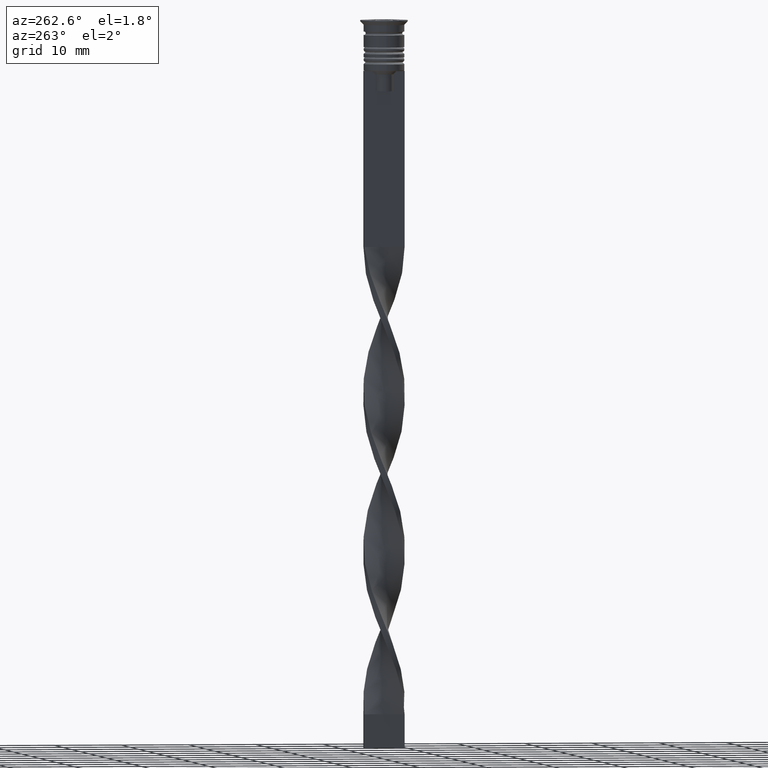
[diagram: clean part render]
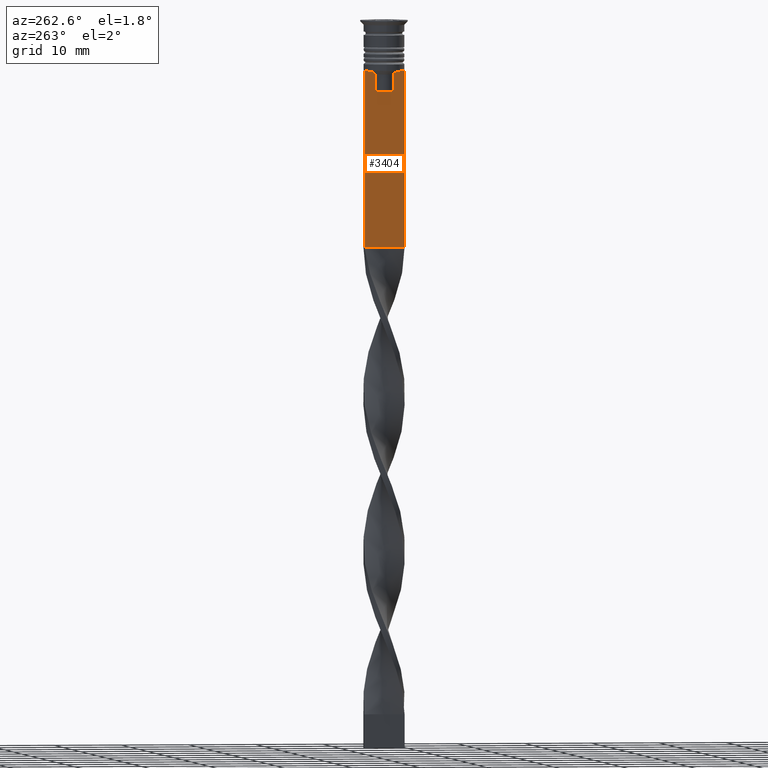
[diagram: same view with one face highlighted and labeled with its STEP entity id]
A machine part, auxiliary view. The second image highlights one B-rep face of the part: STEP entity #3404.
In plain terms, the highlighted planar face has unit normal (-1, 0, 0).
Its self-contained STEP definition (entity closure, byte-faithful):
#36 = DIRECTION ( 'NONE',  ( 0.000000000000000000, 0.000000000000000000, -1.000000000000000000 ) ) ;
#44 = EDGE_CURVE ( 'NONE', #3169, #1009, #161, .T. ) ;
#76 = CARTESIAN_POINT ( 'NONE',  ( -0.5000000000000001110, -1.307669683062199217, 0.000000000000000000 ) ) ;
#161 = LINE ( 'NONE', #435, #290 ) ;
#193 = EDGE_CURVE ( 'NONE', #2103, #3303, #812, .T. ) ;
#209 = VERTEX_POINT ( 'NONE', #2985 ) ;
#214 = VERTEX_POINT ( 'NONE', #2724 ) ;
#290 = VECTOR ( 'NONE', #730, 1000.000000000000000 ) ;
#296 = CARTESIAN_POINT ( 'NONE',  ( -0.5000000000000001110, -3.000000000000000000, -1.417237469701779329 ) ) ;
#327 = EDGE_CURVE ( 'NONE', #209, #2155, #1258, .T. ) ;
#390 = EDGE_LOOP ( 'NONE', ( #3227, #2814, #1753, #3126, #1090, #1323, #1915, #1368, #2499, #3310, #3315, #3326 ) ) ;
#435 = CARTESIAN_POINT ( 'NONE',  ( -0.5000000000000001110, 1.307669683062199217, 0.000000000000000000 ) ) ;
#437 = CARTESIAN_POINT ( 'NONE',  ( -0.5000000000000001110, -3.000000000000000000, -1.417237469701779329 ) ) ;
#520 = CARTESIAN_POINT ( 'NONE',  ( -0.5000000000000001110, -1.833030277982335532, -7.500000000000000000 ) ) ;
#522 = VERTEX_POINT ( 'NONE', #2861 ) ;
#586 = CARTESIAN_POINT ( 'NONE',  ( -0.5000000000000001110, -1.307669683062199217, -10.49999999999999822 ) ) ;
#597 = DIRECTION ( 'NONE',  ( 0.000000000000000000, -1.000000000000000000, 0.000000000000000000 ) ) ;
#612 = EDGE_CURVE ( 'NONE', #1447, #964, #2995, .T. ) ;
#730 = DIRECTION ( 'NONE',  ( 0.000000000000000000, 0.000000000000000000, -1.000000000000000000 ) ) ;
#734 = FACE_OUTER_BOUND ( 'NONE', #390, .T. ) ;
#755 = LINE ( 'NONE', #2920, #2965 ) ;
#776 = DIRECTION ( 'NONE',  ( 0.000000000000000000, -1.000000000000000000, 0.000000000000000000 ) ) ;
#792 = CARTESIAN_POINT ( 'NONE',  ( -0.5000000000000001110, 1.307669683062199217, -8.000000000000000000 ) ) ;
#812 = LINE ( 'NONE', #828, #3117 ) ;
#820 = EDGE_CURVE ( 'NONE', #2103, #214, #2748, .T. ) ;
#828 = CARTESIAN_POINT ( 'NONE',  ( -0.5000000000000001110, 3.000000000000000000, -1.417237469701779329 ) ) ;
#832 = CARTESIAN_POINT ( 'NONE',  ( -0.5000000000000001110, -1.307669683062199217, -8.000000000000000000 ) ) ;
#875 = VERTEX_POINT ( 'NONE', #832 ) ;
#946 = CARTESIAN_POINT ( 'NONE',  ( -0.5000000000000001110, 1.484355510416485391, -7.834966642958598015 ) ) ;
#964 = VERTEX_POINT ( 'NONE', #2255 ) ;
#967 = CARTESIAN_POINT ( 'NONE',  ( -0.5000000000000001110, -3.000000000000000000, -33.50000000000000000 ) ) ;
#981 = DIRECTION ( 'NONE',  ( -0.000000000000000000, -0.000000000000000000, 1.000000000000000000 ) ) ;
#1009 = VERTEX_POINT ( 'NONE', #2253 ) ;
#1070 = DIRECTION ( 'NONE',  ( 0.000000000000000000, -1.000000000000000000, 0.000000000000000000 ) ) ;
#1090 = ORIENTED_EDGE ( 'NONE', *, *, #1866, .F. ) ;
#1123 = CARTESIAN_POINT ( 'NONE',  ( -0.5000000000000001110, 3.000000000000000000, -7.500000000000000000 ) ) ;
#1248 = CARTESIAN_POINT ( 'NONE',  ( -0.5000000000000001110, 1.659046061654642523, -7.667851756010361619 ) ) ;
#1258 = LINE ( 'NONE', #3139, #2114 ) ;
#1323 = ORIENTED_EDGE ( 'NONE', *, *, #612, .F. ) ;
#1331 = CARTESIAN_POINT ( 'NONE',  ( -0.5000000000000001110, -1.484307477388859153, -7.835011508197190722 ) ) ;
#1349 = VECTOR ( 'NONE', #981, 1000.000000000000000 ) ;
#1353 = CARTESIAN_POINT ( 'NONE',  ( -0.5000000000000001110, -3.000000000000000000, -7.500000000000000000 ) ) ;
#1368 = ORIENTED_EDGE ( 'NONE', *, *, #327, .F. ) ;
#1395 = VECTOR ( 'NONE', #776, 1000.000000000000000 ) ;
#1447 = VERTEX_POINT ( 'NONE', #1353 ) ;
#1503 = VECTOR ( 'NONE', #36, 1000.000000000000000 ) ;
#1620 = VECTOR ( 'NONE', #597, 1000.000000000000000 ) ;
#1753 = ORIENTED_EDGE ( 'NONE', *, *, #820, .F. ) ;
#1761 = PLANE ( 'NONE',  #1958 ) ;
#1834 = CARTESIAN_POINT ( 'NONE',  ( -0.5000000000000001110, -3.000000000000000000, -7.500000000000000000 ) ) ;
#1846 = VECTOR ( 'NONE', #2574, 1000.000000000000000 ) ;
#1866 = EDGE_CURVE ( 'NONE', #964, #3303, #2555, .T. ) ;
#1875 = DIRECTION ( 'NONE',  ( 0.000000000000000000, 0.000000000000000000, -1.000000000000000000 ) ) ;
#1915 = ORIENTED_EDGE ( 'NONE', *, *, #2008, .F. ) ;
#1919 = EDGE_CURVE ( 'NONE', #522, #3169, #2781, .T. ) ;
#1958 = AXIS2_PLACEMENT_3D ( 'NONE', #437, #2858, #3381 ) ;
#2007 = CARTESIAN_POINT ( 'NONE',  ( -0.5000000000000001110, 1.307669683062199217, -8.000000000000000000 ) ) ;
#2008 = EDGE_CURVE ( 'NONE', #2155, #1447, #2135, .T. ) ;
#2052 = EDGE_CURVE ( 'NONE', #875, #209, #2165, .T. ) ;
#2103 = VERTEX_POINT ( 'NONE', #1123 ) ;
#2114 = VECTOR ( 'NONE', #2613, 1000.000000000000000 ) ;
#2135 = LINE ( 'NONE', #1834, #1395 ) ;
#2155 = VERTEX_POINT ( 'NONE', #2233 ) ;
#2165 = B_SPLINE_CURVE_WITH_KNOTS ( 'NONE', 3,
 ( #2621, #1331, #3197, #520 ),
 .UNSPECIFIED., .F., .F.,
 ( 4, 4 ),
 ( 0.007225659348748070081, 0.007950554640278040958 ),
 .UNSPECIFIED. ) ;
#2233 = CARTESIAN_POINT ( 'NONE',  ( -0.5000000000000001110, -2.856571371417139904, -7.500000000000000000 ) ) ;
#2253 = CARTESIAN_POINT ( 'NONE',  ( -0.5000000000000001110, 1.307669683062199217, -10.49999999999999822 ) ) ;
#2255 = CARTESIAN_POINT ( 'NONE',  ( -0.5000000000000001110, -3.000000000000000000, -33.50000000000000000 ) ) ;
#2354 = VECTOR ( 'NONE', #1070, 1000.000000000000000 ) ;
#2378 = EDGE_CURVE ( 'NONE', #1009, #2454, #2994, .T. ) ;
#2454 = VERTEX_POINT ( 'NONE', #586 ) ;
#2499 = ORIENTED_EDGE ( 'NONE', *, *, #2052, .F. ) ;
#2555 = LINE ( 'NONE', #967, #1846 ) ;
#2574 = DIRECTION ( 'NONE',  ( 0.000000000000000000, 1.000000000000000000, 0.000000000000000000 ) ) ;
#2600 = DIRECTION ( 'NONE',  ( 0.000000000000000000, -1.000000000000000000, 0.000000000000000000 ) ) ;
#2613 = DIRECTION ( 'NONE',  ( 0.000000000000000000, -1.000000000000000000, 0.000000000000000000 ) ) ;
#2621 = CARTESIAN_POINT ( 'NONE',  ( -0.5000000000000001110, -1.307669683062199217, -8.000000000000000000 ) ) ;
#2724 = CARTESIAN_POINT ( 'NONE',  ( -0.5000000000000001110, 2.856571371417139904, -7.500000000000000000 ) ) ;
#2727 = LINE ( 'NONE', #76, #1349 ) ;
#2748 = LINE ( 'NONE', #2977, #1620 ) ;
#2781 = B_SPLINE_CURVE_WITH_KNOTS ( 'NONE', 3,
 ( #3037, #1248, #946, #2007 ),
 .UNSPECIFIED., .F., .F.,
 ( 4, 4 ),
 ( 0.003278537493109840491, 0.004003794023484932504 ),
 .UNSPECIFIED. ) ;
#2814 = ORIENTED_EDGE ( 'NONE', *, *, #3188, .F. ) ;
#2858 = DIRECTION ( 'NONE',  ( -1.000000000000000000, 0.000000000000000000, 0.000000000000000000 ) ) ;
#2861 = CARTESIAN_POINT ( 'NONE',  ( -0.5000000000000001110, 1.833030277982335532, -7.500000000000000000 ) ) ;
#2911 = EDGE_CURVE ( 'NONE', #2454, #875, #2727, .T. ) ;
#2920 = CARTESIAN_POINT ( 'NONE',  ( -0.5000000000000001110, -3.000000000000000000, -7.500000000000000000 ) ) ;
#2945 = CARTESIAN_POINT ( 'NONE',  ( -0.5000000000000001110, 1.399999999999997691, -10.49999999999999822 ) ) ;
#2965 = VECTOR ( 'NONE', #2600, 1000.000000000000000 ) ;
#2977 = CARTESIAN_POINT ( 'NONE',  ( -0.5000000000000001110, -3.000000000000000000, -7.500000000000000000 ) ) ;
#2985 = CARTESIAN_POINT ( 'NONE',  ( -0.5000000000000001110, -1.833030277982335532, -7.500000000000000000 ) ) ;
#2994 = LINE ( 'NONE', #2945, #2354 ) ;
#2995 = LINE ( 'NONE', #296, #1503 ) ;
#3037 = CARTESIAN_POINT ( 'NONE',  ( -0.5000000000000001110, 1.833030277982335532, -7.500000000000000000 ) ) ;
#3117 = VECTOR ( 'NONE', #1875, 1000.000000000000000 ) ;
#3126 = ORIENTED_EDGE ( 'NONE', *, *, #193, .T. ) ;
#3139 = CARTESIAN_POINT ( 'NONE',  ( -0.5000000000000001110, -3.000000000000000000, -7.500000000000000000 ) ) ;
#3169 = VERTEX_POINT ( 'NONE', #792 ) ;
#3188 = EDGE_CURVE ( 'NONE', #214, #522, #755, .T. ) ;
#3197 = CARTESIAN_POINT ( 'NONE',  ( -0.5000000000000001110, -1.659011726860414093, -7.667884880598472286 ) ) ;
#3227 = ORIENTED_EDGE ( 'NONE', *, *, #1919, .F. ) ;
#3303 = VERTEX_POINT ( 'NONE', #3343 ) ;
#3310 = ORIENTED_EDGE ( 'NONE', *, *, #2911, .F. ) ;
#3315 = ORIENTED_EDGE ( 'NONE', *, *, #2378, .F. ) ;
#3326 = ORIENTED_EDGE ( 'NONE', *, *, #44, .F. ) ;
#3343 = CARTESIAN_POINT ( 'NONE',  ( -0.5000000000000001110, 3.000000000000000000, -33.50000000000000000 ) ) ;
#3381 = DIRECTION ( 'NONE',  ( 0.000000000000000000, 0.000000000000000000, 1.000000000000000000 ) ) ;
#3404 = ADVANCED_FACE ( 'NONE', ( #734 ), #1761, .T. ) ;